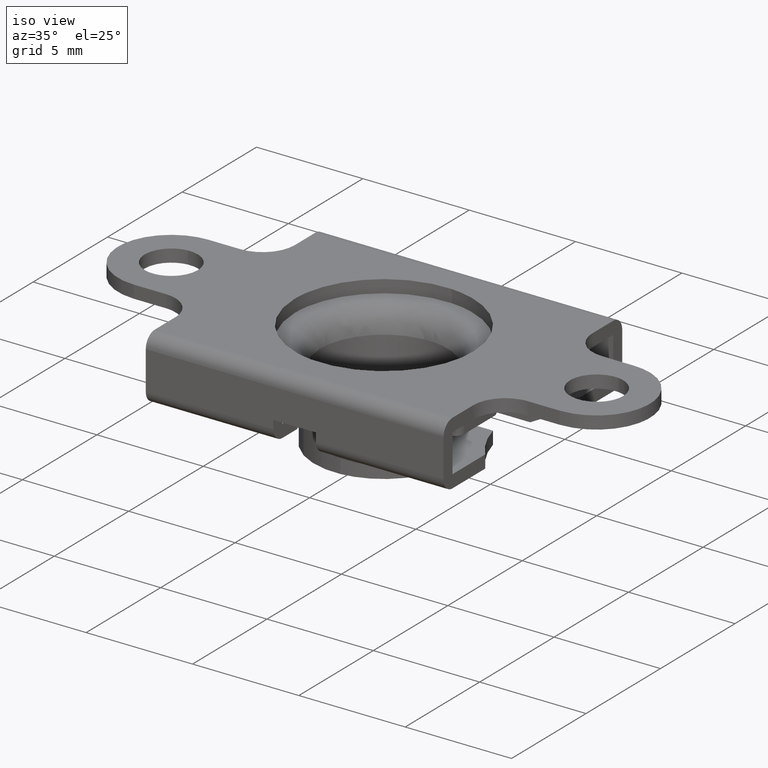
[diagram: clean part render]
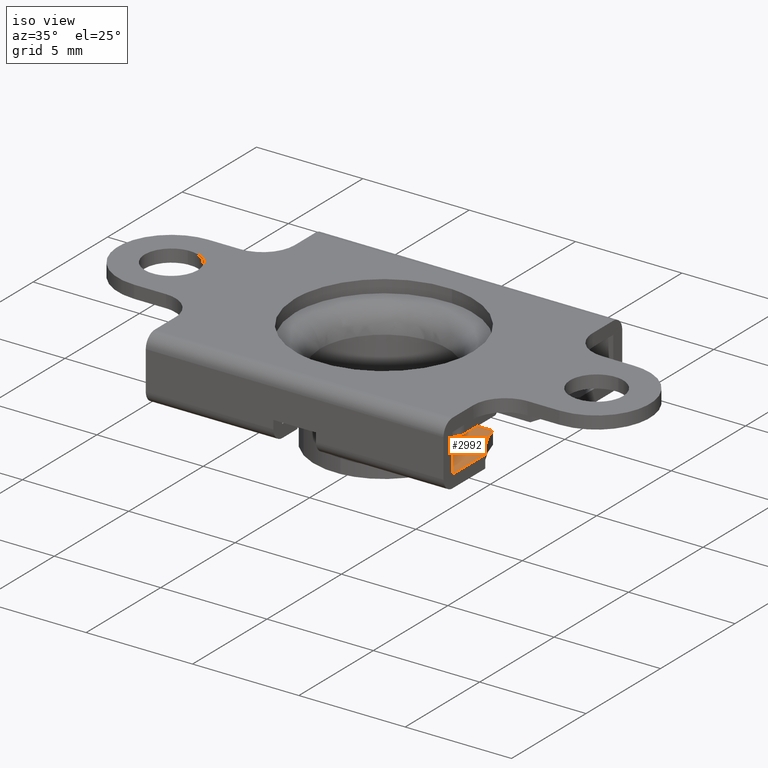
[diagram: same view with one face highlighted and labeled with its STEP entity id]
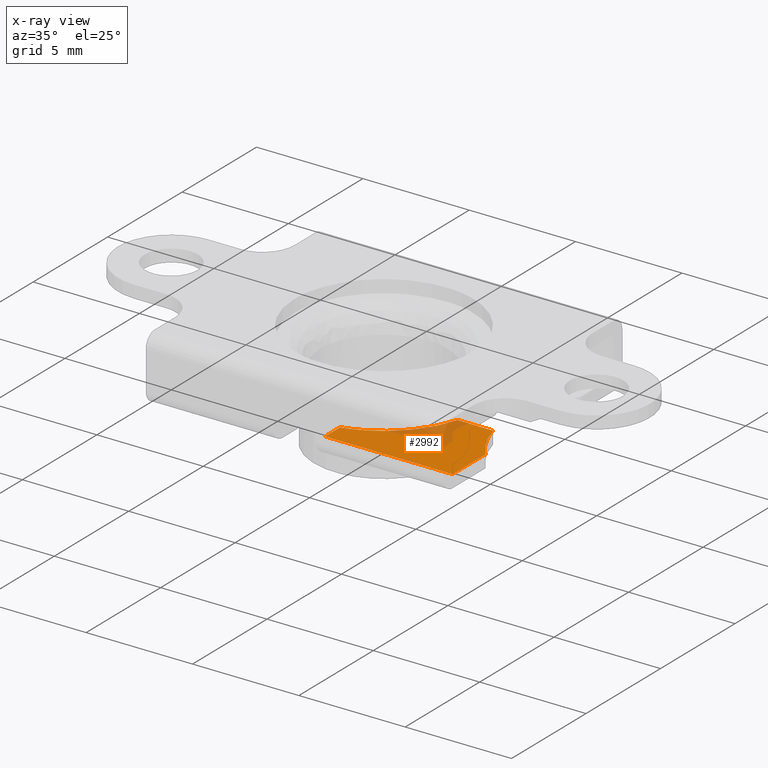
[diagram: x-ray of the same camera — body ghosted, the highlighted face saturated]
A machine part, iso view. The second image highlights one B-rep face of the part: STEP entity #2992.
The next image is the same camera in x-ray: the body ghosted, the highlighted face saturated — about 19% of this face is hidden behind the body in this view.
In plain terms, the highlighted face is a freeform B-spline surface patch.
Its self-contained STEP definition (entity closure, byte-faithful):
#2835=CARTESIAN_POINT('',(7.0,-3.200689661619805,-2.399999999999960));
#2836=VERTEX_POINT('',#2835);
#2837=CARTESIAN_POINT('',(6.000070817240729,-1.250000000000000,-2.399999999999960));
#2838=VERTEX_POINT('',#2837);
#2839=CARTESIAN_POINT('',(6.999999999999992,-3.200689661619811,-2.399999999999960));
#2840=CARTESIAN_POINT('',(6.280906277243163,-2.337671059613929,-2.399999999999960));
#2841=CARTESIAN_POINT('',(6.000070817240728,-1.250000000000002,-2.399999999999960));
#2849=(BOUNDED_CURVE()B_SPLINE_CURVE(2,(#2839,#2840,#2841),.UNSPECIFIED.,.F.,.U.)CURVE()GEOMETRIC_REPRESENTATION_ITEM()QUASI_UNIFORM_CURVE()RATIONAL_B_SPLINE_CURVE((1.0,0.975679001893123,1.0))REPRESENTATION_ITEM(''));
#2850=EDGE_CURVE('',#2836,#2838,#2849,.T.);
#2887=CARTESIAN_POINT('',(4.322904557430135,-1.249998474938974,-2.399999999999960));
#2888=VERTEX_POINT('',#2887);
#2889=CARTESIAN_POINT('',(4.322904557430135,-1.249998474938974,-2.399999999999960));
#2890=CARTESIAN_POINT('',(6.000070817240729,-1.250000000000000,-2.399999999999960));
#2891=QUASI_UNIFORM_CURVE('',1,(#2889,#2890),.UNSPECIFIED.,.F.,.U.);
#2892=EDGE_CURVE('',#2888,#2838,#2891,.T.);
#2924=CARTESIAN_POINT('',(0.999999999999979,-4.387482193696065,-2.399999999999960));
#2925=VERTEX_POINT('',#2924);
#2926=CARTESIAN_POINT('',(4.322904557430136,-1.249998474938973,-2.399999999999960));
#2927=CARTESIAN_POINT('',(3.586116996939726,-3.798051426169435,-2.399999999999960));
#2928=CARTESIAN_POINT('',(0.999999999999981,-4.387482193696065,-2.399999999999960));
#2936=(BOUNDED_CURVE()B_SPLINE_CURVE(2,(#2926,#2927,#2928),.UNSPECIFIED.,.F.,.U.)CURVE()GEOMETRIC_REPRESENTATION_ITEM()QUASI_UNIFORM_CURVE()RATIONAL_B_SPLINE_CURVE((1.0,0.861483799040461,1.0))REPRESENTATION_ITEM(''));
#2937=EDGE_CURVE('',#2888,#2925,#2936,.T.);
#2963=CARTESIAN_POINT('',(0.700300011629143,-1.042705867848439,-2.400000000000000));
#2964=CARTESIAN_POINT('',(7.299700149303379,-1.042705867848439,-2.400000000000000));
#2965=CARTESIAN_POINT('',(0.700300011629143,-5.607292681298346,-2.400000000000000));
#2966=CARTESIAN_POINT('',(7.299700149303379,-5.607292681298346,-2.400000000000000));
#2967=B_SPLINE_SURFACE_WITH_KNOTS('',1,1,((#2963,#2965),(#2964,#2966)),.UNSPECIFIED.,.F.,.F.,.U.,(2,2),(2,2),(0.0,6.599400137674236),(0.0,4.564586813449907),.UNSPECIFIED.);
#2968=CARTESIAN_POINT('',(0.999999999999979,-5.400000000000000,-2.400000000000000));
#2969=VERTEX_POINT('',#2968);
#2970=CARTESIAN_POINT('',(0.999999999999979,-5.400000000000000,-2.400000000000000));
#2971=CARTESIAN_POINT('',(0.999999999999979,-4.387482193696065,-2.399999999999960));
#2972=QUASI_UNIFORM_CURVE('',1,(#2970,#2971),.UNSPECIFIED.,.F.,.U.);
#2973=EDGE_CURVE('',#2969,#2925,#2972,.T.);
#2974=ORIENTED_EDGE('',*,*,#2973,.F.);
#2975=CARTESIAN_POINT('',(7.0,-5.400000000000000,-2.399999999999960));
#2976=VERTEX_POINT('',#2975);
#2977=CARTESIAN_POINT('',(0.999999999999979,-5.400000000000000,-2.400000000000000));
#2978=CARTESIAN_POINT('',(7.0,-5.400000000000000,-2.399999999999960));
#2979=QUASI_UNIFORM_CURVE('',1,(#2977,#2978),.UNSPECIFIED.,.F.,.U.);
#2980=EDGE_CURVE('',#2969,#2976,#2979,.T.);
#2981=ORIENTED_EDGE('',*,*,#2980,.T.);
#2982=CARTESIAN_POINT('',(7.0,-3.200689661619805,-2.399999999999960));
#2983=CARTESIAN_POINT('',(7.0,-5.400000000000000,-2.399999999999960));
#2984=QUASI_UNIFORM_CURVE('',1,(#2982,#2983),.UNSPECIFIED.,.F.,.U.);
#2985=EDGE_CURVE('',#2836,#2976,#2984,.T.);
#2986=ORIENTED_EDGE('',*,*,#2985,.F.);
#2987=ORIENTED_EDGE('',*,*,#2850,.T.);
#2988=ORIENTED_EDGE('',*,*,#2892,.F.);
#2989=ORIENTED_EDGE('',*,*,#2937,.T.);
#2990=EDGE_LOOP('',(#2974,#2981,#2986,#2987,#2988,#2989));
#2991=FACE_OUTER_BOUND('',#2990,.T.);
#2992=ADVANCED_FACE('',(#2991),#2967,.F.);